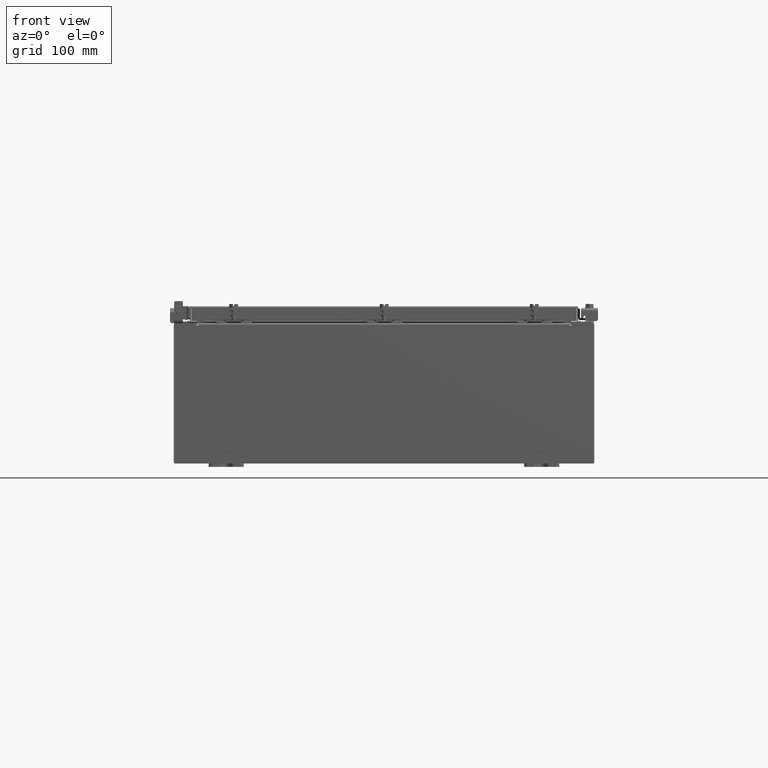
[diagram: clean part render]
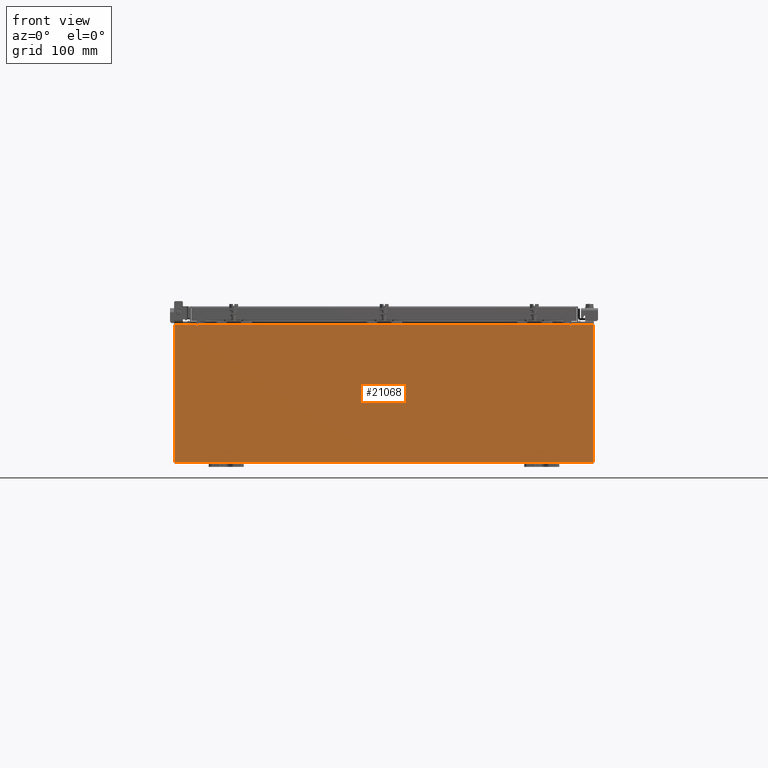
[diagram: same view with one face highlighted and labeled with its STEP entity id]
A machine part, front view. The second image highlights one B-rep face of the part: STEP entity #21068.
In plain terms, the highlighted planar face has unit normal (-0, 1, -0).
Its self-contained STEP definition (entity closure, byte-faithful):
#37 = LINE ( 'NONE', #14775, #13679 ) ;
#217 = LINE ( 'NONE', #4244, #4382 ) ;
#254 = EDGE_CURVE ( 'NONE', #18486, #21043, #37, .T. ) ;
#618 = ORIENTED_EDGE ( 'NONE', *, *, #10272, .T. ) ;
#654 = VECTOR ( 'NONE', #5703, 39.37007874015748100 ) ;
#737 = EDGE_CURVE ( 'NONE', #16867, #10173, #10593, .T. ) ;
#790 = VECTOR ( 'NONE', #20618, 39.37007874015748100 ) ;
#1113 = PLANE ( 'NONE',  #15034 ) ;
#1976 = VECTOR ( 'NONE', #4427, 39.37007874015748100 ) ;
#2118 = CARTESIAN_POINT ( 'NONE',  ( 10.67454999999983300, -0.0000000000000000000, -4.633366117301815000E-013 ) ) ;
#2247 = CARTESIAN_POINT ( 'NONE',  ( -11.92530000000000000, 0.0000000000000000000, -3.925299999999999600 ) ) ;
#2476 = VERTEX_POINT ( 'NONE', #16698 ) ;
#2539 = DIRECTION ( 'NONE',  ( 1.000000000000000000, 0.0000000000000000000, 0.0000000000000000000 ) ) ;
#2827 = CARTESIAN_POINT ( 'NONE',  ( -10.63720000000000400, -0.0000000000000000000, 0.0000000000000000000 ) ) ;
#2991 = ORIENTED_EDGE ( 'NONE', *, *, #16156, .F. ) ;
#3192 = VERTEX_POINT ( 'NONE', #2247 ) ;
#3594 = VERTEX_POINT ( 'NONE', #11654 ) ;
#4244 = CARTESIAN_POINT ( 'NONE',  ( -10.63720000000000400, 1.024442997624098700E-016, 3.912299999999999700 ) ) ;
#4255 = CARTESIAN_POINT ( 'NONE',  ( 10.65587500000000200, 0.0000000000000000000, 3.874949999999999700 ) ) ;
#4382 = VECTOR ( 'NONE', #2539, 39.37007874015748100 ) ;
#4427 = DIRECTION ( 'NONE',  ( 1.000000000000000000, 0.0000000000000000000, 0.0000000000000000000 ) ) ;
#4672 = DIRECTION ( 'NONE',  ( 0.0000000000000000000, -0.0000000000000000000, -1.000000000000000000 ) ) ;
#4698 = VECTOR ( 'NONE', #12427, 39.37007874015748100 ) ;
#5205 = ORIENTED_EDGE ( 'NONE', *, *, #9223, .T. ) ;
#5703 = DIRECTION ( 'NONE',  ( -1.000000000000000000, -0.0000000000000000000, -0.0000000000000000000 ) ) ;
#5865 = LINE ( 'NONE', #7698, #19602 ) ;
#5926 = VECTOR ( 'NONE', #22969, 39.37007874015748100 ) ;
#5956 = DIRECTION ( 'NONE',  ( 0.0000000000000000000, 0.0000000000000000000, 1.000000000000000000 ) ) ;
#6039 = DIRECTION ( 'NONE',  ( 0.0000000000000000000, 0.0000000000000000000, -1.000000000000000000 ) ) ;
#6701 = CARTESIAN_POINT ( 'NONE',  ( -10.63720000000000400, 1.024442997624098700E-016, 3.912299999999999700 ) ) ;
#6754 = VECTOR ( 'NONE', #18848, 39.37007874015748100 ) ;
#7313 = CARTESIAN_POINT ( 'NONE',  ( 10.63720000000000400, 0.0000000000000000000, 3.874949999999999700 ) ) ;
#7444 = EDGE_CURVE ( 'NONE', #2476, #3192, #9016, .T. ) ;
#7698 = CARTESIAN_POINT ( 'NONE',  ( -10.67455000000000200, -0.0000000000000000000, 0.0000000000000000000 ) ) ;
#7791 = CARTESIAN_POINT ( 'NONE',  ( -11.92530000000000000, 0.0000000000000000000, 3.925299999999999600 ) ) ;
#7806 = ORIENTED_EDGE ( 'NONE', *, *, #737, .F. ) ;
#7839 = VERTEX_POINT ( 'NONE', #6701 ) ;
#7918 = EDGE_CURVE ( 'NONE', #3594, #2476, #14866, .T. ) ;
#8201 = VERTEX_POINT ( 'NONE', #7791 ) ;
#8580 = CIRCLE ( 'NONE', #17238, 0.01867499999999949400 ) ;
#8855 = CARTESIAN_POINT ( 'NONE',  ( -11.92530000000000000, 0.0000000000000000000, 3.925299999999999600 ) ) ;
#8926 = ORIENTED_EDGE ( 'NONE', *, *, #10903, .T. ) ;
#9004 = CARTESIAN_POINT ( 'NONE',  ( -10.67455000000000200, 0.0000000000000000000, 3.874949999999999700 ) ) ;
#9016 = LINE ( 'NONE', #16409, #654 ) ;
#9223 = EDGE_CURVE ( 'NONE', #8201, #15208, #9451, .T. ) ;
#9449 = EDGE_CURVE ( 'NONE', #14923, #15208, #5865, .T. ) ;
#9451 = LINE ( 'NONE', #8855, #4698 ) ;
#9799 = DIRECTION ( 'NONE',  ( -0.0000000000000000000, 1.000000000000000000, -0.0000000000000000000 ) ) ;
#9863 = CARTESIAN_POINT ( 'NONE',  ( -11.92530000000000000, 0.0000000000000000000, 3.925299999999999600 ) ) ;
#9868 = CARTESIAN_POINT ( 'NONE',  ( 10.67455000000000200, 0.0000000000000000000, 3.925299999999999600 ) ) ;
#10173 = VERTEX_POINT ( 'NONE', #11313 ) ;
#10272 = EDGE_CURVE ( 'NONE', #16867, #3594, #11412, .T. ) ;
#10431 = CARTESIAN_POINT ( 'NONE',  ( 11.92530000000000000, 0.0000000000000000000, 3.925299999999999600 ) ) ;
#10593 = LINE ( 'NONE', #2118, #11148 ) ;
#10903 = EDGE_CURVE ( 'NONE', #3192, #8201, #13887, .T. ) ;
#10930 = VERTEX_POINT ( 'NONE', #17071 ) ;
#11148 = VECTOR ( 'NONE', #14565, 39.37007874015748100 ) ;
#11274 = ORIENTED_EDGE ( 'NONE', *, *, #7918, .T. ) ;
#11313 = CARTESIAN_POINT ( 'NONE',  ( 10.67455000000000200, 0.0000000000000000000, 3.874949999999999700 ) ) ;
#11412 = LINE ( 'NONE', #18677, #1976 ) ;
#11514 = EDGE_CURVE ( 'NONE', #10930, #14923, #8580, .T. ) ;
#11654 = CARTESIAN_POINT ( 'NONE',  ( 11.92530000000000000, 0.0000000000000000000, 3.925299999999999600 ) ) ;
#11853 = ORIENTED_EDGE ( 'NONE', *, *, #23160, .T. ) ;
#12394 = ORIENTED_EDGE ( 'NONE', *, *, #17405, .F. ) ;
#12427 = DIRECTION ( 'NONE',  ( 1.000000000000000000, 0.0000000000000000000, 0.0000000000000000000 ) ) ;
#12766 = ORIENTED_EDGE ( 'NONE', *, *, #7444, .T. ) ;
#13364 = ORIENTED_EDGE ( 'NONE', *, *, #9449, .F. ) ;
#13489 = CARTESIAN_POINT ( 'NONE',  ( 10.63720000000000400, 0.0000000000000000000, 3.912299999999999700 ) ) ;
#13568 = CARTESIAN_POINT ( 'NONE',  ( 0.0000000000000000000, 0.0000000000000000000, 0.0000000000000000000 ) ) ;
#13679 = VECTOR ( 'NONE', #21946, 39.37007874015748100 ) ;
#13887 = LINE ( 'NONE', #9863, #790 ) ;
#14565 = DIRECTION ( 'NONE',  ( -4.340572780400004900E-014, 0.0000000000000000000, -1.000000000000000000 ) ) ;
#14775 = CARTESIAN_POINT ( 'NONE',  ( 10.63720000000000400, 0.0000000000000000000, 0.0000000000000000000 ) ) ;
#14866 = LINE ( 'NONE', #10431, #5926 ) ;
#14923 = VERTEX_POINT ( 'NONE', #9004 ) ;
#14992 = CARTESIAN_POINT ( 'NONE',  ( -10.67455000000000200, 0.0000000000000000000, 3.925299999999999600 ) ) ;
#15034 = AXIS2_PLACEMENT_3D ( 'NONE', #13568, #15379, #4672 ) ;
#15208 = VERTEX_POINT ( 'NONE', #14992 ) ;
#15379 = DIRECTION ( 'NONE',  ( 0.0000000000000000000, -1.000000000000000000, 0.0000000000000000000 ) ) ;
#16156 = EDGE_CURVE ( 'NONE', #7839, #10930, #16808, .T. ) ;
#16409 = CARTESIAN_POINT ( 'NONE',  ( -11.92530000000000000, 0.0000000000000000000, -3.925299999999999600 ) ) ;
#16698 = CARTESIAN_POINT ( 'NONE',  ( 11.92530000000000000, 0.0000000000000000000, -3.925299999999999600 ) ) ;
#16743 = DIRECTION ( 'NONE',  ( -0.0000000000000000000, 1.000000000000000000, -0.0000000000000000000 ) ) ;
#16808 = LINE ( 'NONE', #2827, #6754 ) ;
#16867 = VERTEX_POINT ( 'NONE', #9868 ) ;
#17071 = CARTESIAN_POINT ( 'NONE',  ( -10.63720000000000400, -0.0000000000000000000, 3.874949999999999700 ) ) ;
#17238 = AXIS2_PLACEMENT_3D ( 'NONE', #20562, #9799, #22343 ) ;
#17242 = ORIENTED_EDGE ( 'NONE', *, *, #11514, .F. ) ;
#17246 = AXIS2_PLACEMENT_3D ( 'NONE', #4255, #16743, #6039 ) ;
#17405 = EDGE_CURVE ( 'NONE', #10173, #18486, #18821, .T. ) ;
#18207 = FACE_OUTER_BOUND ( 'NONE', #22907, .T. ) ;
#18486 = VERTEX_POINT ( 'NONE', #7313 ) ;
#18677 = CARTESIAN_POINT ( 'NONE',  ( -11.92530000000000000, 0.0000000000000000000, 3.925299999999999600 ) ) ;
#18821 = CIRCLE ( 'NONE', #17246, 0.01867499999999949400 ) ;
#18848 = DIRECTION ( 'NONE',  ( 0.0000000000000000000, 0.0000000000000000000, -1.000000000000000000 ) ) ;
#19602 = VECTOR ( 'NONE', #5956, 39.37007874015748100 ) ;
#20562 = CARTESIAN_POINT ( 'NONE',  ( -10.65587500000000200, 0.0000000000000000000, 3.874949999999999700 ) ) ;
#20618 = DIRECTION ( 'NONE',  ( -0.0000000000000000000, -0.0000000000000000000, 1.000000000000000000 ) ) ;
#21043 = VERTEX_POINT ( 'NONE', #13489 ) ;
#21068 = ADVANCED_FACE ( 'NONE', ( #18207 ), #1113, .F. ) ;
#21946 = DIRECTION ( 'NONE',  ( 0.0000000000000000000, 0.0000000000000000000, 1.000000000000000000 ) ) ;
#22227 = ORIENTED_EDGE ( 'NONE', *, *, #254, .F. ) ;
#22343 = DIRECTION ( 'NONE',  ( 0.0000000000000000000, 0.0000000000000000000, -1.000000000000000000 ) ) ;
#22907 = EDGE_LOOP ( 'NONE', ( #13364, #17242, #2991, #11853, #22227, #12394, #7806, #618, #11274, #12766, #8926, #5205 ) ) ;
#22969 = DIRECTION ( 'NONE',  ( 0.0000000000000000000, 0.0000000000000000000, -1.000000000000000000 ) ) ;
#23160 = EDGE_CURVE ( 'NONE', #7839, #21043, #217, .T. ) ;